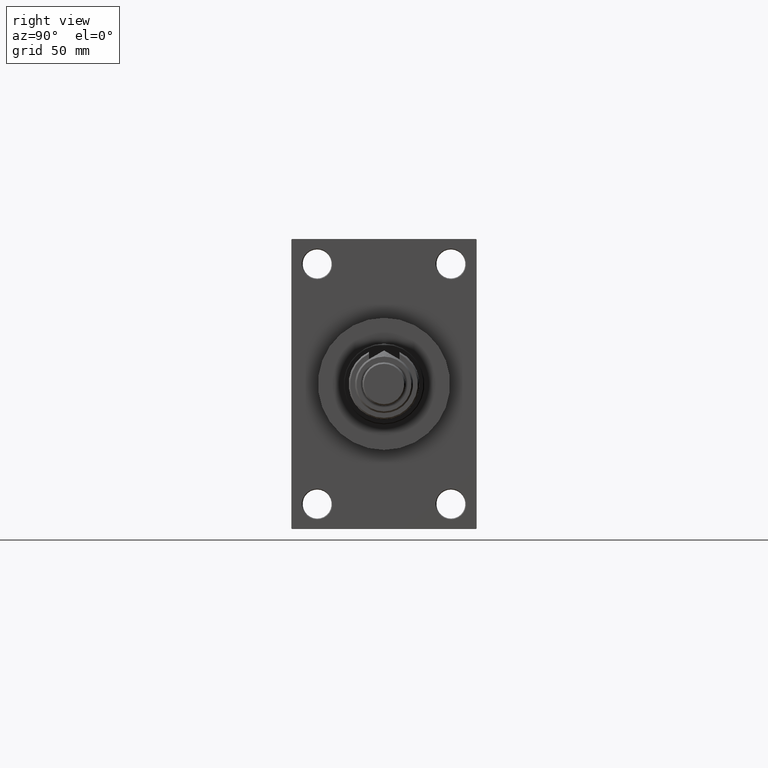
[diagram: clean part render]
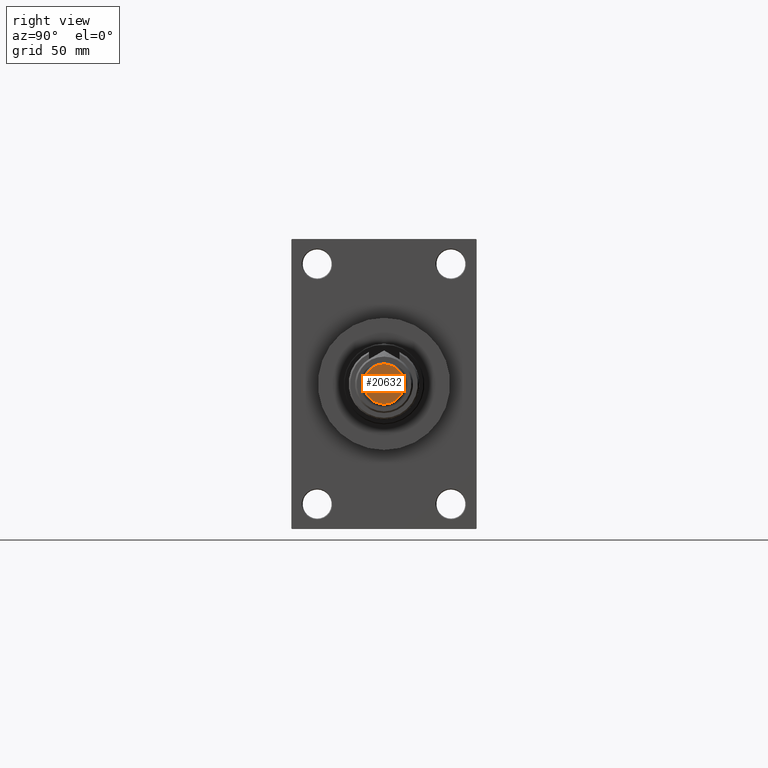
[diagram: same view with one face highlighted and labeled with its STEP entity id]
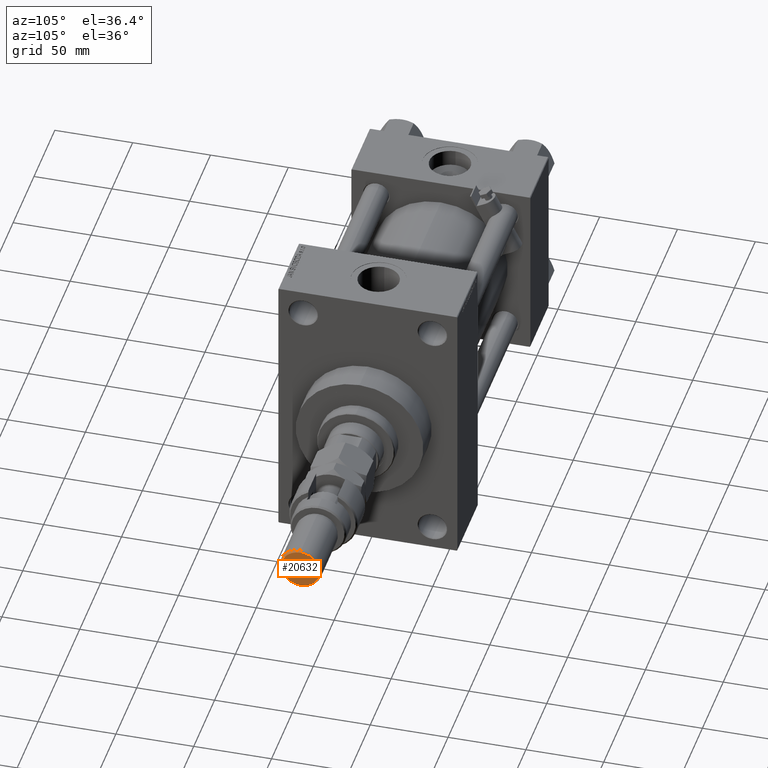
[diagram: same view with one face highlighted and labeled with its STEP entity id]
A machine part, right view. The second image highlights one B-rep face of the part: STEP entity #20632.
A second angle (auxiliary view) of the same face is appended — the face is thin or edge-on in the first view.
In plain terms, the highlighted planar face has unit normal (1, 0, 0).
Its self-contained STEP definition (entity closure, byte-faithful):
#5201 = CARTESIAN_POINT ( 'NONE',  ( 0.000000000000000000, 0.000000000000000000, 74.00000000000001421 ) ) ;
#6119 = EDGE_CURVE ( 'NONE', #28789, #19866, #13297, .T. ) ;
#6379 = DIRECTION ( 'NONE',  ( 0.000000000000000000, 0.000000000000000000, 1.000000000000000000 ) ) ;
#6518 = DIRECTION ( 'NONE',  ( 1.000000000000000000, 0.000000000000000000, 0.000000000000000000 ) ) ;
#11208 = DIRECTION ( 'NONE',  ( 0.000000000000000000, 0.000000000000000000, 1.000000000000000000 ) ) ;
#12037 = CIRCLE ( 'NONE', #34498, 12.50000000000000888 ) ;
#13297 = CIRCLE ( 'NONE', #42460, 12.50000000000000888 ) ;
#15006 = ORIENTED_EDGE ( 'NONE', *, *, #6119, .T. ) ;
#19866 = VERTEX_POINT ( 'NONE', #29057 ) ;
#20632 = ADVANCED_FACE ( 'NONE', ( #40436 ), #28693, .T. ) ;
#21220 = AXIS2_PLACEMENT_3D ( 'NONE', #5201, #29192, #41719 ) ;
#28693 = PLANE ( 'NONE',  #21220 ) ;
#28789 = VERTEX_POINT ( 'NONE', #33412 ) ;
#29057 = CARTESIAN_POINT ( 'NONE',  ( -12.50000000000000888, 0.000000000000000000, 74.00000000000001421 ) ) ;
#29192 = DIRECTION ( 'NONE',  ( 0.000000000000000000, 0.000000000000000000, 1.000000000000000000 ) ) ;
#32057 = ORIENTED_EDGE ( 'NONE', *, *, #47867, .T. ) ;
#33412 = CARTESIAN_POINT ( 'NONE',  ( 12.50000000000000888, 1.592040838891559884E-15, 74.00000000000001421 ) ) ;
#33511 = DIRECTION ( 'NONE',  ( 1.000000000000000000, 0.000000000000000000, 0.000000000000000000 ) ) ;
#34498 = AXIS2_PLACEMENT_3D ( 'NONE', #41853, #6379, #33511 ) ;
#37062 = EDGE_LOOP ( 'NONE', ( #32057, #15006 ) ) ;
#40436 = FACE_OUTER_BOUND ( 'NONE', #37062, .T. ) ;
#41719 = DIRECTION ( 'NONE',  ( 1.000000000000000000, 0.000000000000000000, -0.000000000000000000 ) ) ;
#41853 = CARTESIAN_POINT ( 'NONE',  ( 0.000000000000000000, 0.000000000000000000, 74.00000000000001421 ) ) ;
#42460 = AXIS2_PLACEMENT_3D ( 'NONE', #50854, #11208, #6518 ) ;
#47867 = EDGE_CURVE ( 'NONE', #19866, #28789, #12037, .T. ) ;
#50854 = CARTESIAN_POINT ( 'NONE',  ( 0.000000000000000000, 0.000000000000000000, 74.00000000000001421 ) ) ;